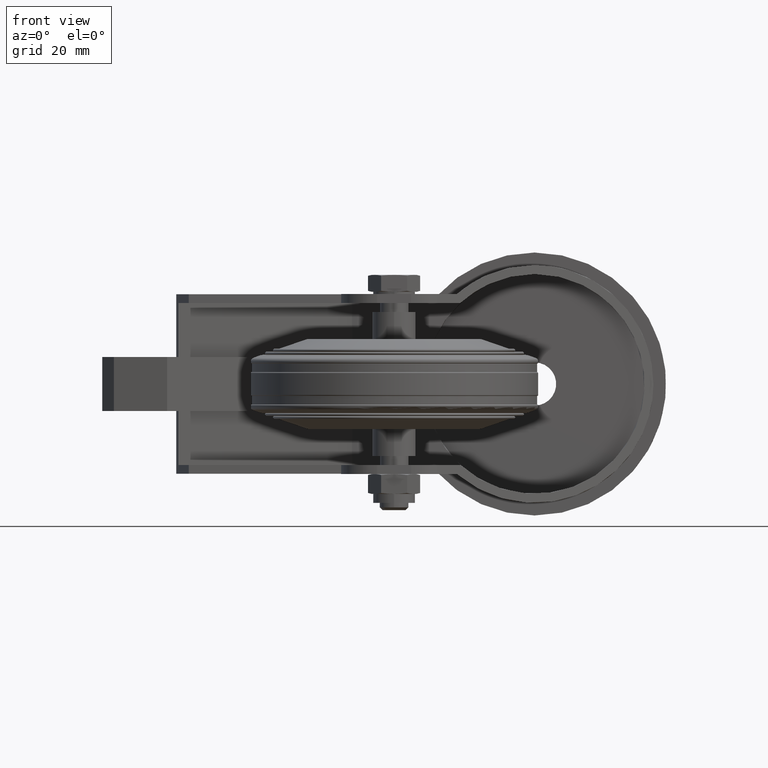
[diagram: clean part render]
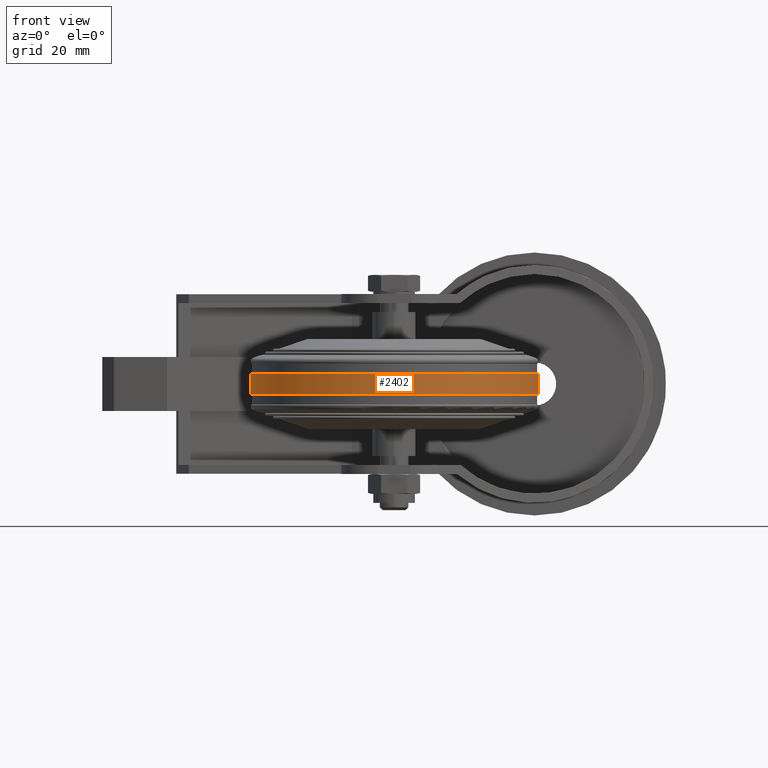
[diagram: same view with one face highlighted and labeled with its STEP entity id]
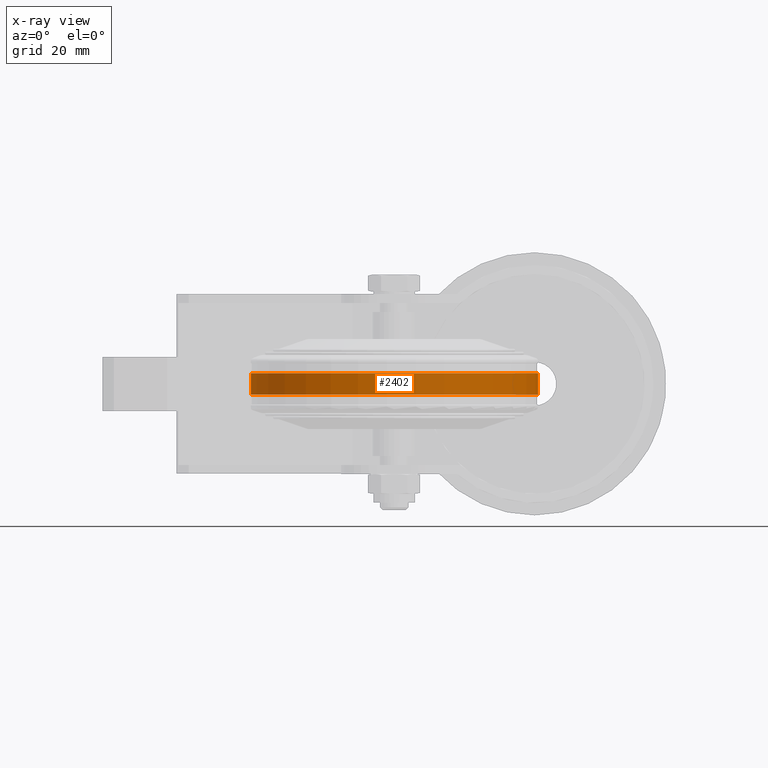
[diagram: x-ray of the same camera — body ghosted, the highlighted face saturated]
A machine part, front view. The second image highlights one B-rep face of the part: STEP entity #2402.
The next image is the same camera in x-ray: the body ghosted, the highlighted face saturated — about 0% of this face is hidden behind the body in this view.
In plain terms, the highlighted cylindrical surface (bore or boss wall) has radius 40 mm, axis along (0, 0, -1).
Its self-contained STEP definition (entity closure, byte-faithful):
#421=FACE_OUTER_BOUND('',#598,.T.);
#598=EDGE_LOOP('',(#2195,#2196,#2197,#2198));
#730=CIRCLE('',#2790,40.);
#731=CIRCLE('',#2792,40.);
#889=LINE('',#4307,#1033);
#1033=VECTOR('',#3498,40.);
#1233=VERTEX_POINT('',#4302);
#1234=VERTEX_POINT('',#4306);
#1555=EDGE_CURVE('',#1233,#1233,#730,.T.);
#1556=EDGE_CURVE('',#1233,#1234,#889,.T.);
#1557=EDGE_CURVE('',#1234,#1234,#731,.T.);
#2195=ORIENTED_EDGE('',*,*,#1555,.F.);
#2196=ORIENTED_EDGE('',*,*,#1556,.T.);
#2197=ORIENTED_EDGE('',*,*,#1557,.T.);
#2198=ORIENTED_EDGE('',*,*,#1556,.F.);
#2259=CYLINDRICAL_SURFACE('',#2791,40.);
#2402=ADVANCED_FACE('',(#421),#2259,.T.);
#2790=AXIS2_PLACEMENT_3D('',#4304,#3494,#3495);
#2791=AXIS2_PLACEMENT_3D('',#4305,#3496,#3497);
#2792=AXIS2_PLACEMENT_3D('',#4308,#3499,#3500);
#3494=DIRECTION('center_axis',(6.12323399573677E-17,0.,-1.));
#3495=DIRECTION('ref_axis',(-1.,0.,-6.12323399573677E-17));
#3496=DIRECTION('center_axis',(6.12323399573677E-17,0.,-1.));
#3497=DIRECTION('ref_axis',(-1.,0.,-6.12323399573677E-17));
#3498=DIRECTION('',(-6.12323399573677E-17,0.,1.));
#3499=DIRECTION('center_axis',(6.12323399573677E-17,0.,-1.));
#3500=DIRECTION('ref_axis',(-1.,0.,-6.12323399573677E-17));
#4302=CARTESIAN_POINT('',(40.,-4.89858719658941E-15,-3.));
#4304=CARTESIAN_POINT('Origin',(1.83697019872103E-16,0.,-3.));
#4305=CARTESIAN_POINT('Origin',(7.65404249467096E-16,0.,-12.5));
#4306=CARTESIAN_POINT('',(40.,-4.89858719658941E-15,3.));
#4307=CARTESIAN_POINT('',(40.,-4.89858719658941E-15,-12.5));
#4308=CARTESIAN_POINT('Origin',(-1.83697019872103E-16,0.,3.));